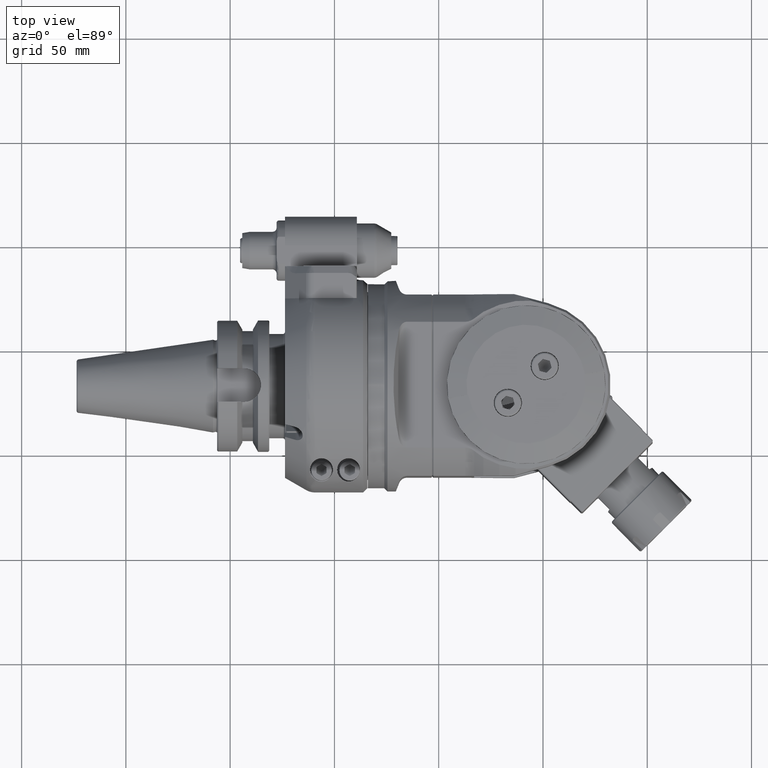
[diagram: clean part render]
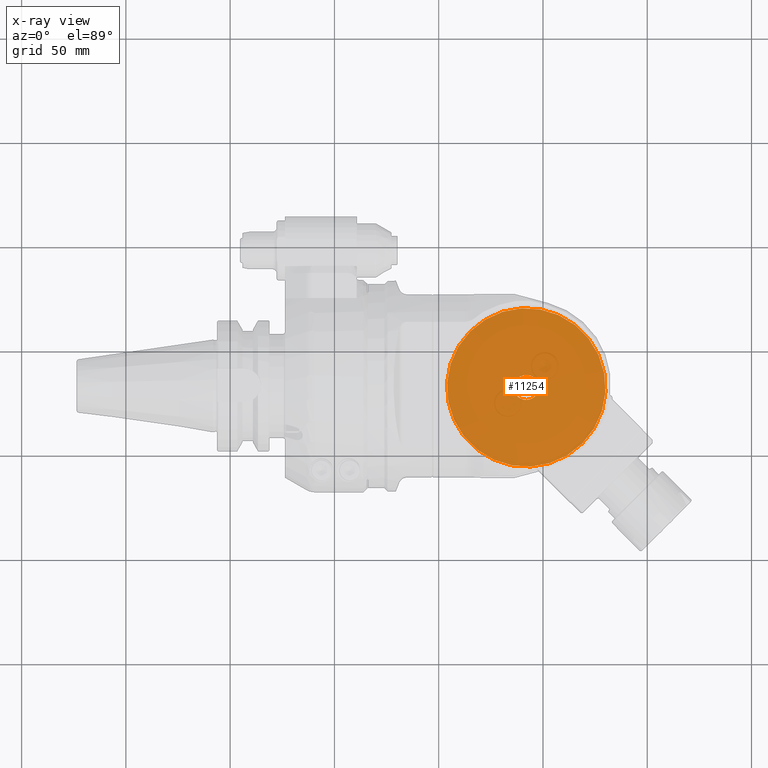
[diagram: x-ray — body ghosted, one internal face saturated and labeled with its STEP entity id]
A machine part, top view, then the same camera in x-ray: the body is ghosted and one INTERNAL B-rep face — a face not visible from any outside direction — is saturated and labeled: STEP entity #11254.
In plain terms, the highlighted planar face has unit normal (-0, -0, 1).
Its self-contained STEP definition (entity closure, byte-faithful):
#179=FACE_BOUND('',#2190,.T.);
#699=PLANE('',#12400);
#1444=FACE_OUTER_BOUND('',#2189,.T.);
#2189=EDGE_LOOP('',(#10032));
#2190=EDGE_LOOP('',(#10033));
#2737=CIRCLE('',#12399,6.);
#2738=CIRCLE('',#12401,38.);
#5456=VERTEX_POINT('',#49830);
#5457=VERTEX_POINT('',#49834);
#7011=EDGE_CURVE('',#5456,#5456,#2737,.T.);
#7012=EDGE_CURVE('',#5457,#5457,#2738,.T.);
#10032=ORIENTED_EDGE('',*,*,#7012,.T.);
#10033=ORIENTED_EDGE('',*,*,#7011,.T.);
#11254=ADVANCED_FACE('',(#1444,#179),#699,.T.);
#12399=AXIS2_PLACEMENT_3D('',#49832,#15212,#15213);
#12400=AXIS2_PLACEMENT_3D('',#49833,#15214,#15215);
#12401=AXIS2_PLACEMENT_3D('',#49835,#15216,#15217);
#15212=DIRECTION('center_axis',(0.,-1.,0.));
#15213=DIRECTION('ref_axis',(-0.707106781186548,0.,-0.707106781186548));
#15214=DIRECTION('center_axis',(0.,1.,0.));
#15215=DIRECTION('ref_axis',(-0.707106781186548,0.,-0.707106781186548));
#15216=DIRECTION('center_axis',(0.,1.,0.));
#15217=DIRECTION('ref_axis',(0.707106781186547,0.,0.707106781186547));
#49830=CARTESIAN_POINT('',(111.24264068712,-38.5,4.24264068711987));
#49832=CARTESIAN_POINT('Origin',(107.000000000001,-38.5,5.86197757002083E-13));
#49833=CARTESIAN_POINT('Origin',(74.3670220482414,-38.5,-32.6329779517586));
#49834=CARTESIAN_POINT('',(133.870057685089,-38.5,26.8700576850894));
#49835=CARTESIAN_POINT('Origin',(107.000000000001,-38.5,5.86197757002083E-13));